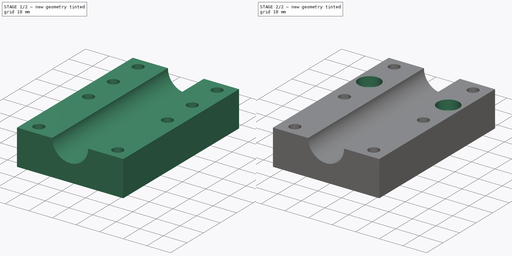
[diagram: build sequence overview — one tinted view per stage of 2, left to right]
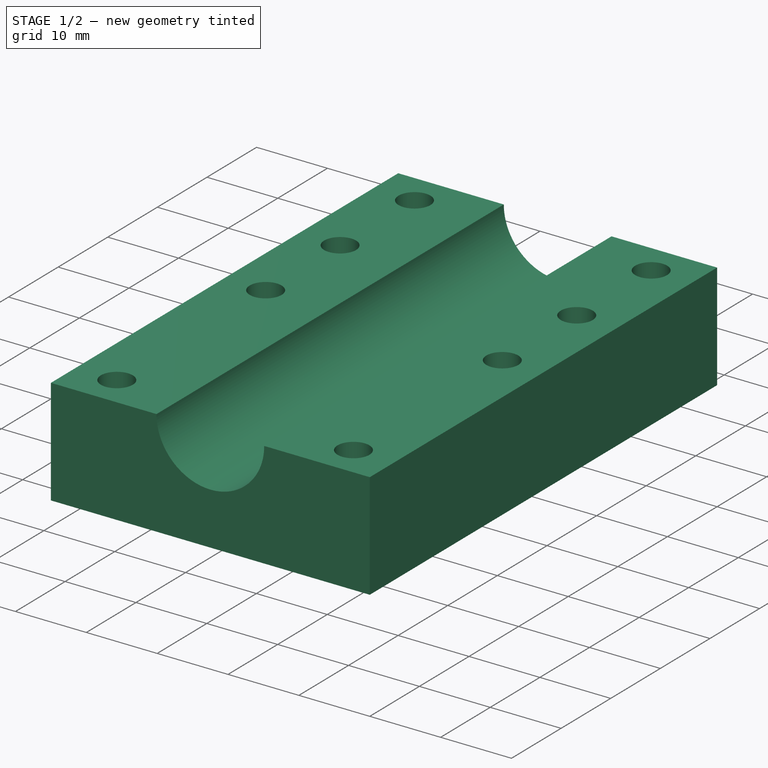
[diagram: stage 1 of 2 — iso view after this stage's code; geometry added in this stage tinted green]
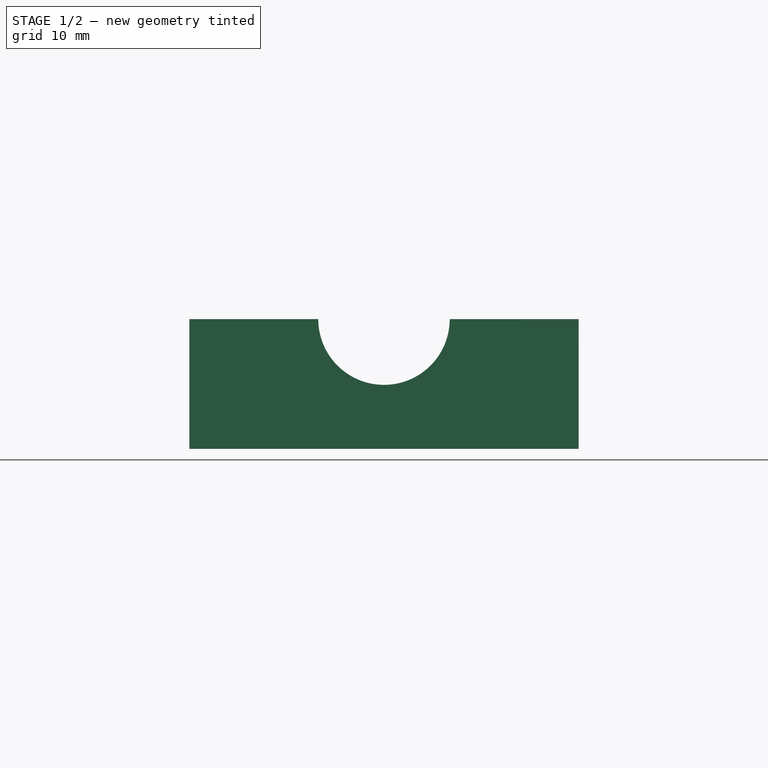
[diagram: stage 1 of 2 — front view after this stage's code; geometry added in this stage tinted green]
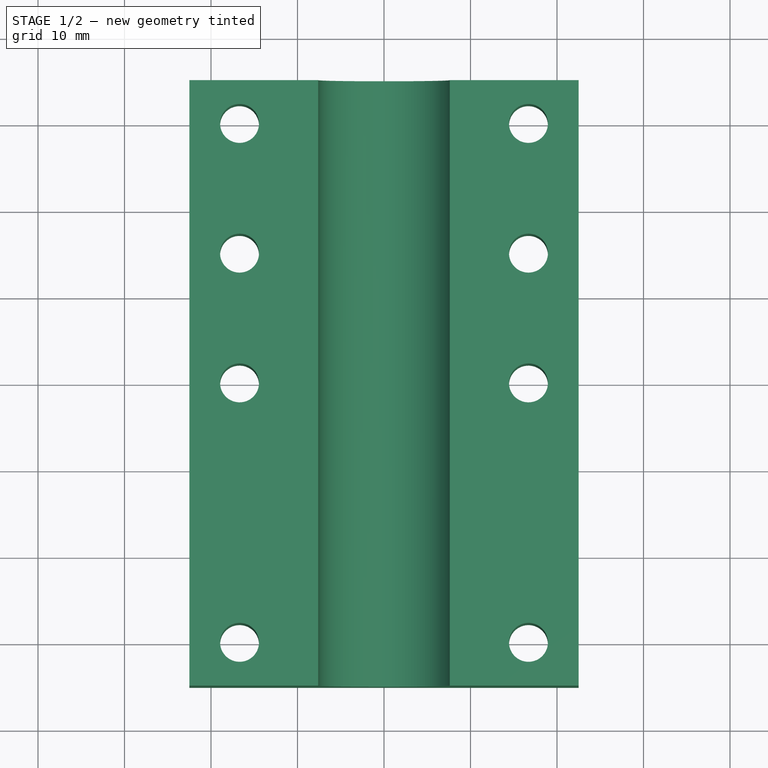
[diagram: stage 1 of 2 — top view after this stage's code; geometry added in this stage tinted green]
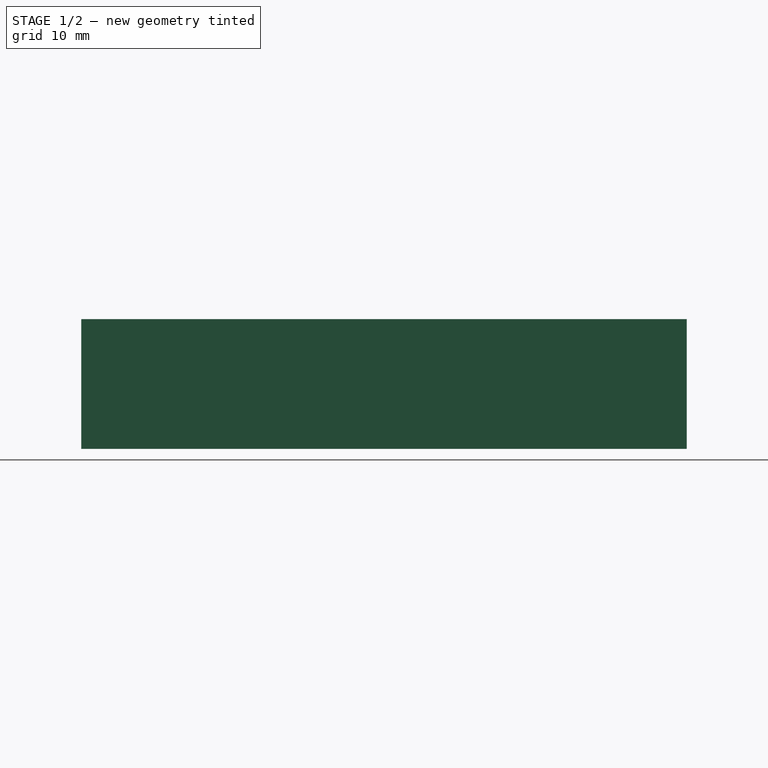
[diagram: stage 1 of 2 — right view after this stage's code; geometry added in this stage tinted green]
FCSTD DOCUMENT  (FreeCAD 0.14R3703 (Git))
Label: Z-block-2-8mm
License: CC-BY 3.0
LicenseURL: http://creativecommons.org/licenses/by/3.0/
objects: Sketcher::SketchObject×3, PartDesign::Pocket×2, PartDesign::Pad×1
note: 9 computed .brp shape members not serialized (recipe doc carries the construction recipe); baked Part::Feature solids carry a one-line shape summary decoded from their .brp

FEATURE [Sketcher::SketchObject] Sketch
  sketch-geometry (16):
    g0: LineSegment StartX=-22.5 StartY=-35 StartZ=0 EndX=22.5 EndY=-35 EndZ=0
    g1: LineSegment StartX=22.5 StartY=35 StartZ=0 EndX=-22.5 EndY=35 EndZ=0
    g2: LineSegment StartX=-22.5 StartY=35 StartZ=0 EndX=-22.5 EndY=-35 EndZ=0
    g3: LineSegment StartX=22.5 StartY=35 StartZ=0 EndX=22.5 EndY=-35 EndZ=0
    g4: LineSegment [constr] StartX=-16.7 StartY=30 StartZ=0 EndX=16.7 EndY=30 EndZ=0
    g5: LineSegment [constr] StartX=16.7 StartY=30 StartZ=0 EndX=16.7 EndY=-30 EndZ=0
    g6: LineSegment [constr] StartX=16.7 StartY=-30 StartZ=0 EndX=-16.7 EndY=-30 EndZ=0
    g7: LineSegment [constr] StartX=-16.7 StartY=-30 StartZ=0 EndX=-16.7 EndY=30 EndZ=0
    g8: Circle CenterX=-16.7 CenterY=30 CenterZ=0 NormalX=0 NormalY=0 NormalZ=1 Radius=2.25
    g9: Circle CenterX=16.7 CenterY=30 CenterZ=0 NormalX=0 NormalY=0 NormalZ=1 Radius=2.25
    g10: Circle CenterX=-16.7 CenterY=-30 CenterZ=0 NormalX=0 NormalY=0 NormalZ=1 Radius=2.25
    g11: Circle CenterX=16.7 CenterY=-30 CenterZ=0 NormalX=0 NormalY=0 NormalZ=1 Radius=2.25
    g12: Circle CenterX=-16.7 CenterY=0 CenterZ=0 NormalX=0 NormalY=0 NormalZ=1 Radius=2.25
    g13: Circle CenterX=16.7 CenterY=0 CenterZ=0 NormalX=0 NormalY=0 NormalZ=1 Radius=2.25
    g14: Circle CenterX=16.7 CenterY=15 CenterZ=0 NormalX=0 NormalY=0 NormalZ=1 Radius=2.25
    g15: Circle CenterX=-16.7 CenterY=15 CenterZ=0 NormalX=0 NormalY=0 NormalZ=1 Radius=2.25
  constraints (42):
    c: Coincident(g1,g2)
    c: Coincident(g2,g0)
    c: Horizontal(g0)
    c: Horizontal(g1)
    c: Coincident(g3,g0)
    c: Symmetric(g0,g0,g-2)
    c: Symmetric(g0,g1,g-1)
    c: Equal(g0,g1)
    c: Distance(g2) = 70
    c: Distance(g1) = 45
    c: Coincident(g4,g5)
    c: Coincident(g5,g6)
    c: Coincident(g6,g7)
    c: Coincident(g7,g4)
    c: Horizontal(g4)
    c: Horizontal(g6)
    c: Vertical(g5)
    c: Coincident(g8,g4)
    c: Coincident(g9,g4)
    c: Coincident(g10,g6)
    c: Coincident(g11,g5)
    c: PointOnObject(g12,g7)
    c: PointOnObject(g13,g5)
    c: PointOnObject(g15,g7)
    c: Symmetric(g4,g4,g-2)
    c: PointOnObject(g12,g-1)
    c: PointOnObject(g13,g-1)
    c: Symmetric(g6,g4,g-1)
    c: DistanceY(g5,g0) = -5
    c: Equal(g8,g9)
    c: Equal(g9,g12)
    c: Equal(g12,g15)
    c: Equal(g15,g14)
    c: Equal(g13,g11)
    c: Equal(g11,g10)
    c: PointOnObject(g14,g5)
    c: DistanceX(g5,g0) = 5.8
    c: Coincident(g3,g1)
    c: Distance(g13,g14) = 15
    c: Symmetric(g15,g14,g-2)
    c: Radius(g9) = 2.25
    c: Equal(g13,g14)
FEATURE [PartDesign::Pad] Pad
  Length = 15
  Length2 = 100
  Sketch = -> Sketch
  Type = 0
FEATURE [Sketcher::SketchObject] Sketch001
  ExternalGeometry = -> [Pad]
  Placement = pos=(0,-35,0) rot=(1,0,0;1.5708rad)
  Support = -> Pad [Face3]
  sketch-geometry (1):
    g0: Circle CenterX=0 CenterY=15 CenterZ=0 NormalX=0 NormalY=0 NormalZ=1 Radius=7.6
  constraints (3):
    c: PointOnObject(g0,g-3)
    c: PointOnObject(g0,g-2)
    c: Radius(g0) = 7.6
FEATURE [PartDesign::Pocket] Pocket
  Length = 5
  Sketch = -> Sketch001
  Type = 1
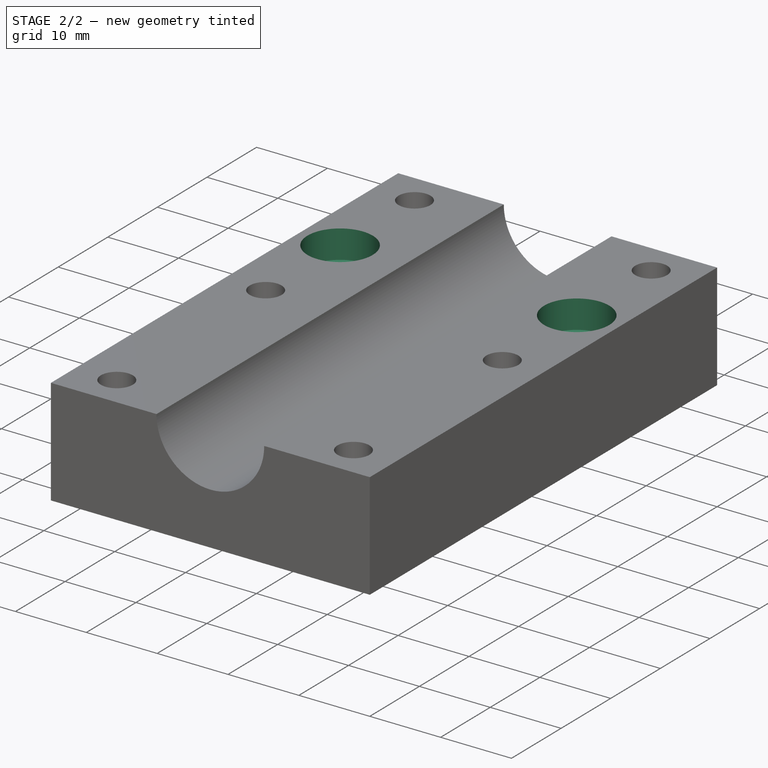
[diagram: stage 2 of 2 — iso view after this stage's code; geometry added in this stage tinted green]
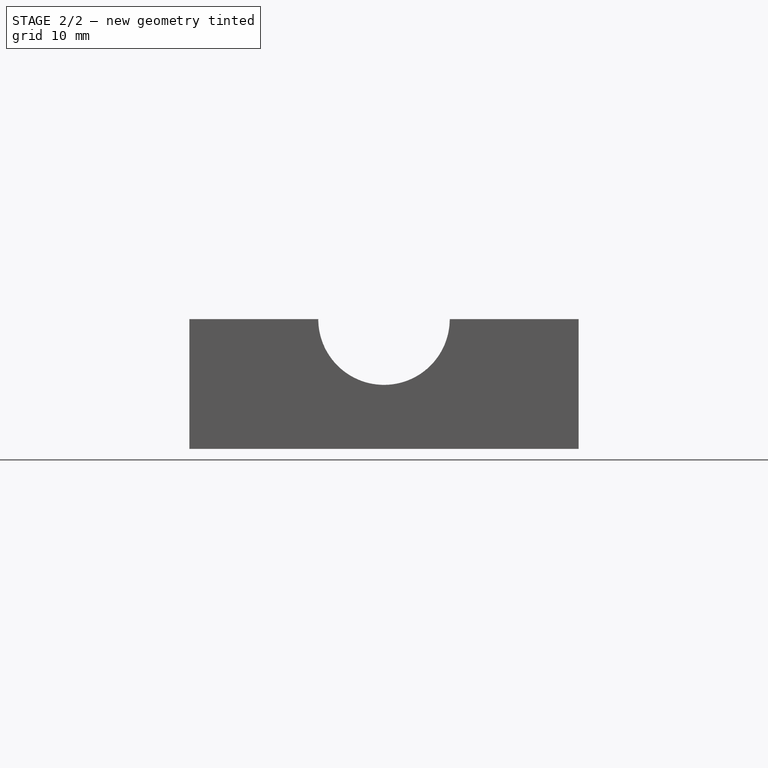
[diagram: stage 2 of 2 — front view after this stage's code; geometry added in this stage tinted green]
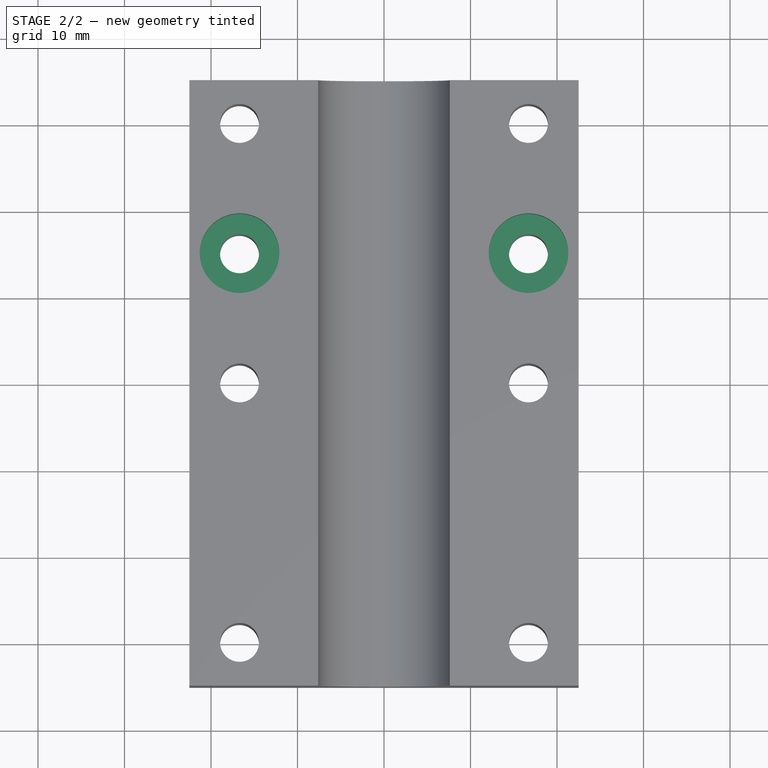
[diagram: stage 2 of 2 — top view after this stage's code; geometry added in this stage tinted green]
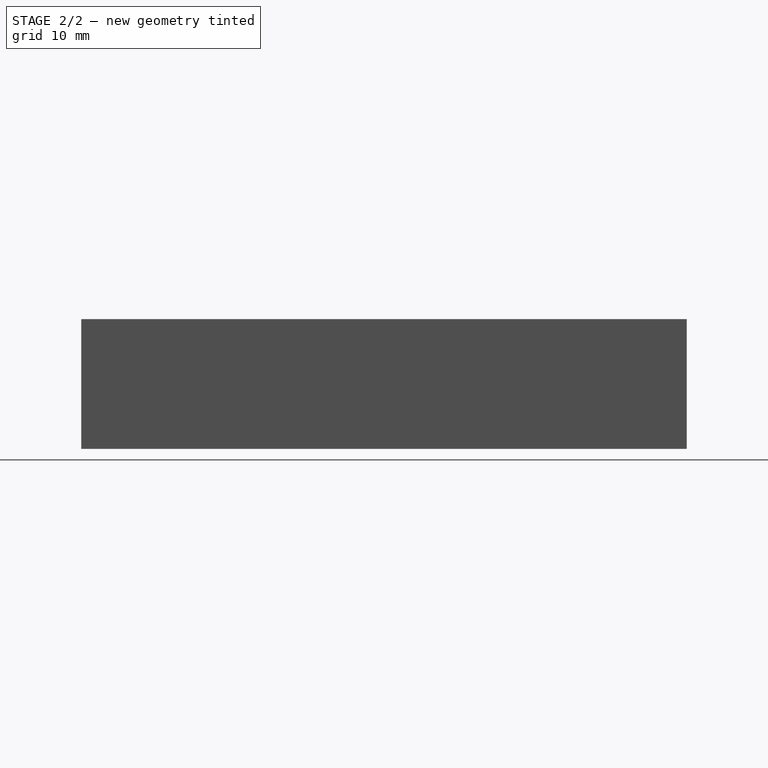
[diagram: stage 2 of 2 — right view after this stage's code; geometry added in this stage tinted green]
FEATURE [Sketcher::SketchObject] Sketch002
  Placement = pos=(0,0,15) rot=(0,0,1;0rad)
  Support = -> Pocket [Face4]
  sketch-geometry (2):
    g0: Circle CenterX=-16.7 CenterY=15 CenterZ=0 NormalX=0 NormalY=0 NormalZ=1 Radius=4.6
    g1: Circle CenterX=16.7 CenterY=15 CenterZ=0 NormalX=0 NormalY=0 NormalZ=1 Radius=4.6
  constraints (2):
    c: Equal(g1,g0)
    c: Radius(g1) = 4.6
FEATURE [PartDesign::Pocket] Pocket001
  Length = 4
  Sketch = -> Sketch002
  Type = 0
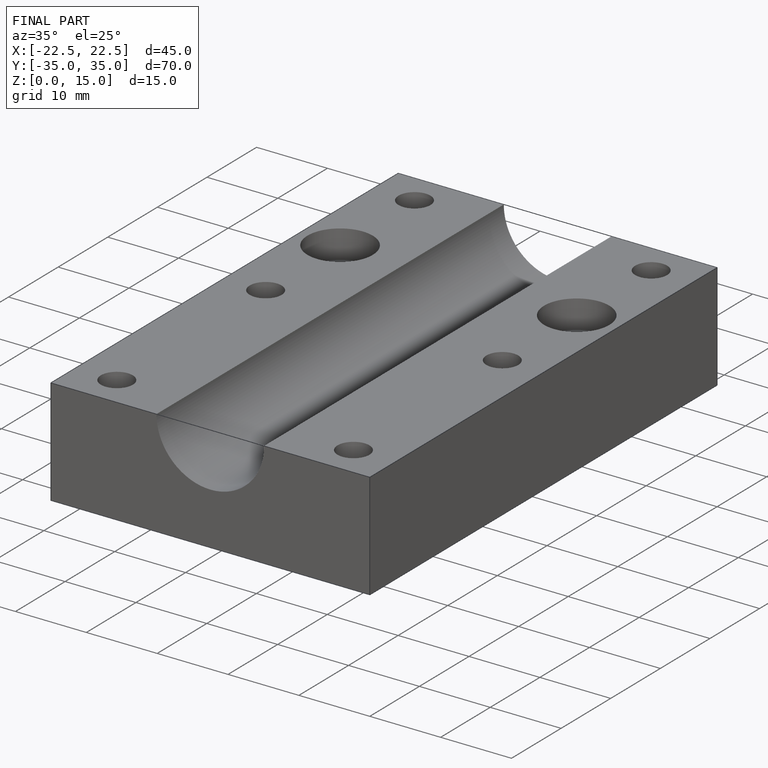
[diagram: finished part — iso view with bounding-box wireframe]
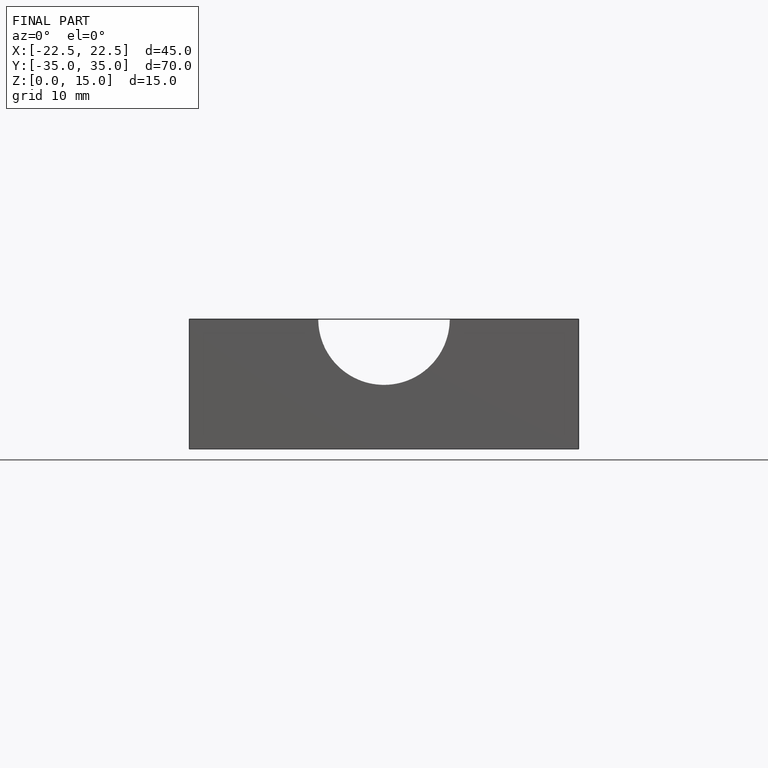
[diagram: finished part — front view with bounding-box wireframe]
